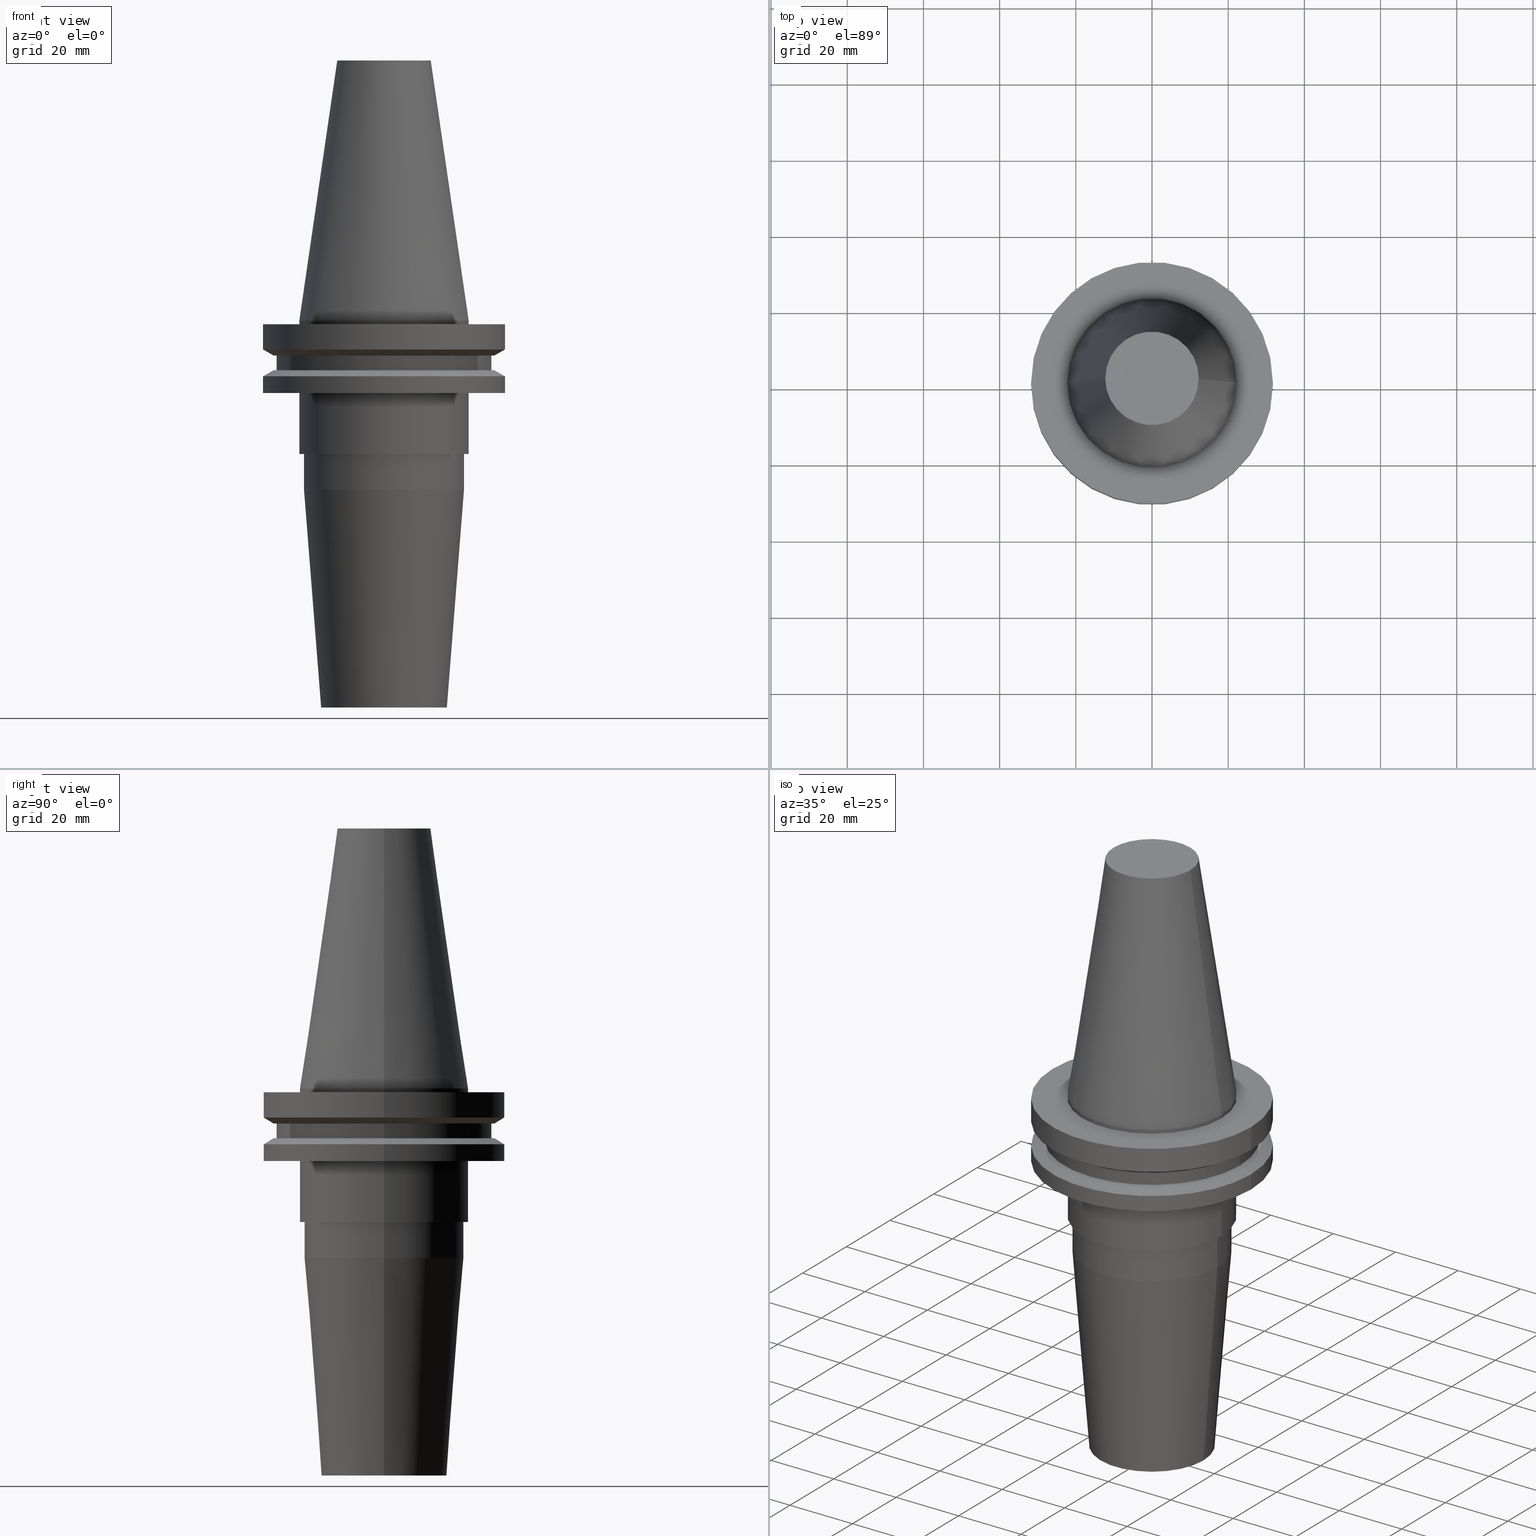
[diagram: canonical four-view strip — front | top / right | iso, engineering-drawing reading convention]
A machine part, canonical four-view strip (front | top / right | iso — engineering-drawing reading convention). The complete STEP part file that produces these views, byte-faithful:
ISO-10303-21;
HEADER;
FILE_DESCRIPTION (( 'STEP AP203' ),
    '1' );
FILE_NAME ('BCV40-SF_750-4.STEP',
    '2022-02-23T17:24:05',
    ( '' ),
    ( '' ),
    'SwSTEP 2.0',
    'SolidWorks 2021',
    '' );
FILE_SCHEMA (( 'CONFIG_CONTROL_DESIGN' ));
ENDSEC;

DATA;
#1 = DIRECTION ( 'NONE',  ( 1.000000000000000000, 0.000000000000000000, 0.000000000000000000 ) ) ;
#2 = VERTEX_POINT ( 'NONE', #451 ) ;
#3 = CYLINDRICAL_SURFACE ( 'NONE', #595, 21.00000000000000000 ) ;
#4 = CARTESIAN_POINT ( 'NONE',  ( 0.000000000000000000, 0.000000000000000000, -1.000000000000000888 ) ) ;
#5 = APPROVAL_DATE_TIME ( #793, #571 ) ;
#6 = ORIENTED_EDGE ( 'NONE', *, *, #713, .T. ) ;
#7 = CARTESIAN_POINT ( 'NONE',  ( 0.000000000000000000, 0.000000000000000000, -19.04999999999999716 ) ) ;
#8 = CARTESIAN_POINT ( 'NONE',  ( -9.524999999999993250, 1.166476076187853036E-15, -101.5999999999999943 ) ) ;
#9 = ORIENTED_EDGE ( 'NONE', *, *, #236, .F. ) ;
#10 = DIRECTION ( 'NONE',  ( -0.000000000000000000, -0.000000000000000000, 1.000000000000000000 ) ) ;
#11 = ADVANCED_FACE ( 'NONE', ( #779, #580 ), #382, .F. ) ;
#12 = DIRECTION ( 'NONE',  ( -0.000000000000000000, -0.000000000000000000, 1.000000000000000000 ) ) ;
#13 = AXIS2_PLACEMENT_3D ( 'NONE', #109, #768, #828 ) ;
#14 = ORIENTED_EDGE ( 'NONE', *, *, #446, .F. ) ;
#15 = DIRECTION ( 'NONE',  ( 1.000000000000000000, 0.000000000000000000, 0.000000000000000000 ) ) ;
#16 = ORIENTED_EDGE ( 'NONE', *, *, #849, .F. ) ;
#17 = DIRECTION ( 'NONE',  ( -0.000000000000000000, -0.000000000000000000, 1.000000000000000000 ) ) ;
#18 = VECTOR ( 'NONE', #352, 999.9999999999998863 ) ;
#19 = EDGE_CURVE ( 'NONE', #2, #391, #101, .T. ) ;
#20 = ORIENTED_EDGE ( 'NONE', *, *, #188, .T. ) ;
#21 = CARTESIAN_POINT ( 'NONE',  ( -22.22499999999999787, 2.721777511104992454E-15, -35.04999999999999716 ) ) ;
#22 = VECTOR ( 'NONE', #373, 1000.000000000000000 ) ;
#23 = ORIENTED_EDGE ( 'NONE', *, *, #116, .T. ) ;
#24 = EDGE_CURVE ( 'NONE', #777, #761, #456, .T. ) ;
#25 = EDGE_CURVE ( 'NONE', #605, #142, #358, .T. ) ;
#26 = FACE_OUTER_BOUND ( 'NONE', #725, .T. ) ;
#27 = CYLINDRICAL_SURFACE ( 'NONE', #742, 22.22500000000000142 ) ;
#28 = ORIENTED_EDGE ( 'NONE', *, *, #152, .T. ) ;
#29 = CARTESIAN_POINT ( 'NONE',  ( 16.50000000000000000, 0.000000000000000000, -101.5999999999999943 ) ) ;
#30 = VERTEX_POINT ( 'NONE', #181 ) ;
#31 = CARTESIAN_POINT ( 'NONE',  ( 21.00000000000000000, 0.000000000000000000, -35.04999999999999716 ) ) ;
#32 = ORIENTED_EDGE ( 'NONE', *, *, #667, .T. ) ;
#33 = EDGE_CURVE ( 'NONE', #718, #428, #575, .T. ) ;
#34 = CIRCLE ( 'NONE', #635, 16.50000000000000000 ) ;
#35 = DIRECTION ( 'NONE',  ( 1.000000000000000000, 0.000000000000000000, 0.000000000000000000 ) ) ;
#36 = EDGE_LOOP ( 'NONE', ( #631, #326, #496, #228 ) ) ;
#37 = CARTESIAN_POINT ( 'NONE',  ( 22.22500000000000142, 0.000000000000000000, -1.000000000000000888 ) ) ;
#38 = CARTESIAN_POINT ( 'NONE',  ( 0.000000000000000000, 0.000000000000000000, -1.000000000000000888 ) ) ;
#39 = COORDINATED_UNIVERSAL_TIME_OFFSET ( 6, 0, .BEHIND. ) ;
#40 = ORIENTED_EDGE ( 'NONE', *, *, #539, .T. ) ;
#41 = CIRCLE ( 'NONE', #396, 28.17999999999999972 ) ;
#42 = EDGE_CURVE ( 'NONE', #74, #92, #52, .T. ) ;
#43 = CARTESIAN_POINT ( 'NONE',  ( 22.22500000000000142, 0.000000000000000000, 68.25000000000000000 ) ) ;
#44 = CYLINDRICAL_SURFACE ( 'NONE', #170, 31.75000000000000000 ) ;
#45 = PERSON_AND_ORGANIZATION ( #56, #693 ) ;
#46 = PRODUCT_DEFINITION_SHAPE ( 'NONE', 'NONE',  #815 ) ;
#47 = VERTEX_POINT ( 'NONE', #770 ) ;
#48 = DIRECTION ( 'NONE',  ( 0.000000000000000000, 0.000000000000000000, -1.000000000000000000 ) ) ;
#49 = EDGE_CURVE ( 'NONE', #105, #676, #651, .T. ) ;
#50 = AXIS2_PLACEMENT_3D ( 'NONE', #553, #17, #816 ) ;
#51 = PLANE ( 'NONE',  #298 ) ;
#52 = CIRCLE ( 'NONE', #475, 22.22500000000000142 ) ;
#53 = CC_DESIGN_PERSON_AND_ORGANIZATION_ASSIGNMENT ( #772, #192, ( #208 ) ) ;
#54 = AXIS2_PLACEMENT_3D ( 'NONE', #606, #480, #392 ) ;
#55 = DIRECTION ( 'NONE',  ( -0.000000000000000000, -0.000000000000000000, 1.000000000000000000 ) ) ;
#56 = PERSON ( 'UNSPECIFIED', 'UNSPECIFIED', 'UNSPECIFIED', ('UNSPECIFIED'), ('UNSPECIFIED'), ('UNSPECIFIED') ) ;
#57 = VERTEX_POINT ( 'NONE', #261 ) ;
#58 = CARTESIAN_POINT ( 'NONE',  ( 0.000000000000000000, 0.000000000000000000, -9.205000000000005400 ) ) ;
#59 = DIRECTION ( 'NONE',  ( 0.000000000000000000, 0.000000000000000000, -1.000000000000000000 ) ) ;
#60 = PERSON_AND_ORGANIZATION_ROLE ( 'classification_officer' ) ;
#61 = FACE_OUTER_BOUND ( 'NONE', #263, .T. ) ;
#62 = ORIENTED_EDGE ( 'NONE', *, *, #446, .T. ) ;
#63 = CARTESIAN_POINT ( 'NONE',  ( 0.000000000000000000, 0.000000000000000000, -14.65472339340266572 ) ) ;
#64 = DIRECTION ( 'NONE',  ( 1.000000000000000000, 0.000000000000000000, 0.000000000000000000 ) ) ;
#65 = EDGE_CURVE ( 'NONE', #846, #288, #217, .T. ) ;
#66 = SECURITY_CLASSIFICATION_LEVEL ( 'unclassified' ) ;
#67 = ORIENTED_EDGE ( 'NONE', *, *, #171, .T. ) ;
#68 = ORIENTED_EDGE ( 'NONE', *, *, #672, .F. ) ;
#69 = CARTESIAN_POINT ( 'NONE',  ( 0.000000000000000000, 0.000000000000000000, -9.205000000000005400 ) ) ;
#70 = AXIS2_PLACEMENT_3D ( 'NONE', #783, #591, #463 ) ;
#71 = DIRECTION ( 'NONE',  ( 0.000000000000000000, -0.000000000000000000, 1.000000000000000000 ) ) ;
#72 = AXIS2_PLACEMENT_3D ( 'NONE', #136, #717, #401 ) ;
#73 = CARTESIAN_POINT ( 'NONE',  ( 0.000000000000000000, 0.000000000000000000, -35.04999999999999716 ) ) ;
#74 = VERTEX_POINT ( 'NONE', #586 ) ;
#75 = CARTESIAN_POINT ( 'NONE',  ( -12.27178102086201150, 0.000000000000000000, 68.25000000000000000 ) ) ;
#76 = CARTESIAN_POINT ( 'NONE',  ( 0.000000000000000000, 0.000000000000000000, -44.42207868720773689 ) ) ;
#77 = CC_DESIGN_APPROVAL ( #571, ( #243 ) ) ;
#78 = EDGE_LOOP ( 'NONE', ( #741, #557, #690, #247 ) ) ;
#79 = EDGE_CURVE ( 'NONE', #646, #300, #810, .T. ) ;
#80 = DIRECTION ( 'NONE',  ( -0.07845909572783665853, 9.608468044709093523E-18, 0.9969173337331286300 ) ) ;
#81 = CYLINDRICAL_SURFACE ( 'NONE', #88, 9.524999999999991473 ) ;
#82 = EDGE_LOOP ( 'NONE', ( #360, #570, #108, #310 ) ) ;
#83 = DIRECTION ( 'NONE',  ( 1.000000000000000000, 0.000000000000000000, 0.000000000000000000 ) ) ;
#84 = EDGE_CURVE ( 'NONE', #269, #663, #314, .T. ) ;
#85 = CARTESIAN_POINT ( 'NONE',  ( 0.000000000000000000, 0.000000000000000000, -9.204999999999991189 ) ) ;
#86 = SHAPE_DEFINITION_REPRESENTATION ( #46, #521 ) ;
#87 = AXIS2_PLACEMENT_3D ( 'NONE', #732, #791, #598 ) ;
#88 = AXIS2_PLACEMENT_3D ( 'NONE', #671, #535, #531 ) ;
#89 = ORIENTED_EDGE ( 'NONE', *, *, #361, .F. ) ;
#90 = FACE_OUTER_BOUND ( 'NONE', #167, .T. ) ;
#91 = ADVANCED_FACE ( 'NONE', ( #649 ), #823, .T. ) ;
#92 = VERTEX_POINT ( 'NONE', #37 ) ;
#93 = CARTESIAN_POINT ( 'NONE',  ( 0.000000000000000000, 0.000000000000000000, -101.5999999999999943 ) ) ;
#94 = ORIENTED_EDGE ( 'NONE', *, *, #305, .F. ) ;
#95 = AXIS2_PLACEMENT_3D ( 'NONE', #334, #800, #788 ) ;
#96 = ADVANCED_FACE ( 'NONE', ( #573 ), #44, .T. ) ;
#97 = ORIENTED_EDGE ( 'NONE', *, *, #752, .F. ) ;
#98 = PRODUCT ( 'BCV40-SF_750-4', 'BCV40-SF_750-4', '', ( #129 ) ) ;
#99 = DIRECTION ( 'NONE',  ( 1.000000000000000000, 0.000000000000000000, 0.000000000000000000 ) ) ;
#100 = AXIS2_PLACEMENT_3D ( 'NONE', #760, #510, #444 ) ;
#101 = CIRCLE ( 'NONE', #202, 16.50000000000000000 ) ;
#102 = ORIENTED_EDGE ( 'NONE', *, *, #837, .F. ) ;
#103 = DIRECTION ( 'NONE',  ( -0.000000000000000000, -0.000000000000000000, 1.000000000000000000 ) ) ;
#104 = CARTESIAN_POINT ( 'NONE',  ( 0.000000000000000000, 0.000000000000000000, 68.25000000000000000 ) ) ;
#105 = VERTEX_POINT ( 'NONE', #246 ) ;
#106 = EDGE_CURVE ( 'NONE', #676, #105, #417, .T. ) ;
#107 = LINE ( 'NONE', #364, #740 ) ;
#108 = ORIENTED_EDGE ( 'NONE', *, *, #305, .T. ) ;
#109 = CARTESIAN_POINT ( 'NONE',  ( 0.000000000000000000, 0.000000000000000000, -13.05499999999999794 ) ) ;
#110 = CARTESIAN_POINT ( 'NONE',  ( 0.000000000000000000, 0.000000000000000000, -101.5999999999999943 ) ) ;
#111 = VECTOR ( 'NONE', #193, 1000.000000000000000 ) ;
#112 = AXIS2_PLACEMENT_3D ( 'NONE', #38, #328, #311 ) ;
#113 = DIRECTION ( 'NONE',  ( 1.000000000000000000, 0.000000000000000000, 0.000000000000000000 ) ) ;
#114 = ORIENTED_EDGE ( 'NONE', *, *, #672, .T. ) ;
#115 = DIRECTION ( 'NONE',  ( -0.000000000000000000, -0.000000000000000000, 1.000000000000000000 ) ) ;
#116 = EDGE_CURVE ( 'NONE', #605, #57, #762, .T. ) ;
#117 = COORDINATED_UNIVERSAL_TIME_OFFSET ( 6, 0, .BEHIND. ) ;
#118 = DIRECTION ( 'NONE',  ( -0.000000000000000000, -0.000000000000000000, 1.000000000000000000 ) ) ;
#119 = PERSON_AND_ORGANIZATION_ROLE ( 'creator' ) ;
#120 = EDGE_CURVE ( 'NONE', #300, #646, #431, .T. ) ;
#121 = EDGE_LOOP ( 'NONE', ( #483, #821 ) ) ;
#122 = DIRECTION ( 'NONE',  ( 1.000000000000000000, 0.000000000000000000, 0.000000000000000000 ) ) ;
#123 = CARTESIAN_POINT ( 'NONE',  ( 0.000000000000000000, 0.000000000000000000, -101.5999999999999943 ) ) ;
#124 = PERSON_AND_ORGANIZATION_ROLE ( 'creator' ) ;
#125 = CARTESIAN_POINT ( 'NONE',  ( 0.000000000000000000, 0.000000000000000000, -19.04999999999999716 ) ) ;
#126 = CIRCLE ( 'NONE', #13, 28.17999999999999972 ) ;
#127 = DIRECTION ( 'NONE',  ( 0.000000000000000000, 0.000000000000000000, -1.000000000000000000 ) ) ;
#128 = CARTESIAN_POINT ( 'NONE',  ( 0.000000000000000000, 0.000000000000000000, -1.000000000000000888 ) ) ;
#129 = MECHANICAL_CONTEXT ( 'NONE', #555, 'mechanical' ) ;
#130 = CARTESIAN_POINT ( 'NONE',  ( 31.75000000000000000, 0.000000000000000000, -14.65472339340266572 ) ) ;
#131 = EDGE_LOOP ( 'NONE', ( #802, #67, #137, #234 ) ) ;
#132 = DIRECTION ( 'NONE',  ( -0.000000000000000000, -0.000000000000000000, 1.000000000000000000 ) ) ;
#133 = ADVANCED_FACE ( 'NONE', ( #394 ), #81, .F. ) ;
#134 = PLANE ( 'NONE',  #460 ) ;
#135 = PERSON_AND_ORGANIZATION ( #56, #693 ) ;
#136 = CARTESIAN_POINT ( 'NONE',  ( 0.000000000000000000, 0.000000000000000000, -35.04999999999999716 ) ) ;
#137 = ORIENTED_EDGE ( 'NONE', *, *, #180, .T. ) ;
#138 = AXIS2_PLACEMENT_3D ( 'NONE', #173, #498, #739 ) ;
#139 = CARTESIAN_POINT ( 'NONE',  ( -31.75000000000000000, 3.888253587292846476E-15, -14.65472339340266572 ) ) ;
#140 = DIRECTION ( 'NONE',  ( 1.000000000000000000, 0.000000000000000000, 0.000000000000000000 ) ) ;
#141 = DIRECTION ( 'NONE',  ( -0.000000000000000000, -0.000000000000000000, 1.000000000000000000 ) ) ;
#142 = VERTEX_POINT ( 'NONE', #8 ) ;
#143 = DIRECTION ( 'NONE',  ( -0.000000000000000000, -0.000000000000000000, 1.000000000000000000 ) ) ;
#144 = VECTOR ( 'NONE', #688, 1000.000000000000000 ) ;
#145 = DIRECTION ( 'NONE',  ( 1.000000000000000000, 0.000000000000000000, 0.000000000000000000 ) ) ;
#146 = ADVANCED_FACE ( 'NONE', ( #665, #613 ), #134, .F. ) ;
#147 = ORIENTED_EDGE ( 'NONE', *, *, #236, .T. ) ;
#148 = DIRECTION ( 'NONE',  ( -0.000000000000000000, -0.000000000000000000, 1.000000000000000000 ) ) ;
#149 = CARTESIAN_POINT ( 'NONE',  ( -21.00000000000000000, 2.571758278209441661E-15, 0.000000000000000000 ) ) ;
#150 = ADVANCED_FACE ( 'NONE', ( #546 ), #399, .T. ) ;
#151 = ORIENTED_EDGE ( 'NONE', *, *, #49, .F. ) ;
#152 = EDGE_CURVE ( 'NONE', #410, #718, #281, .T. ) ;
#153 = CARTESIAN_POINT ( 'NONE',  ( -31.75000000000000000, 3.888253587292846476E-15, 68.25000000000000000 ) ) ;
#154 = DIRECTION ( 'NONE',  ( 1.000000000000000000, 0.000000000000000000, 0.000000000000000000 ) ) ;
#155 = CARTESIAN_POINT ( 'NONE',  ( 28.97919780457007732, 0.000000000000000000, -9.205000000000005400 ) ) ;
#156 = EDGE_LOOP ( 'NONE', ( #763, #62, #251, #653 ) ) ;
#157 = ADVANCED_FACE ( 'NONE', ( #724, #224 ), #406, .F. ) ;
#158 = CARTESIAN_POINT ( 'NONE',  ( 0.000000000000000000, 0.000000000000000000, -14.65472339340266572 ) ) ;
#159 = EDGE_LOOP ( 'NONE', ( #537, #162 ) ) ;
#160 = CIRCLE ( 'NONE', #487, 31.75000000000000000 ) ;
#161 = AXIS2_PLACEMENT_3D ( 'NONE', #847, #10, #339 ) ;
#162 = ORIENTED_EDGE ( 'NONE', *, *, #106, .T. ) ;
#163 = DIRECTION ( 'NONE',  ( 0.1443082272672999711, 1.767266086135276757E-17, -0.9895327864921755756 ) ) ;
#164 = ORIENTED_EDGE ( 'NONE', *, *, #301, .F. ) ;
#165 = LINE ( 'NONE', #294, #807 ) ;
#166 = CIRCLE ( 'NONE', #138, 9.524999999999987921 ) ;
#167 = EDGE_LOOP ( 'NONE', ( #264, #550, #734, #379 ) ) ;
#168 = DIRECTION ( 'NONE',  ( -0.000000000000000000, -0.000000000000000000, 1.000000000000000000 ) ) ;
#169 = VECTOR ( 'NONE', #368, 1000.000000000000000 ) ;
#170 = AXIS2_PLACEMENT_3D ( 'NONE', #203, #464, #636 ) ;
#171 = EDGE_CURVE ( 'NONE', #410, #750, #660, .T. ) ;
#172 = ORIENTED_EDGE ( 'NONE', *, *, #24, .T. ) ;
#173 = CARTESIAN_POINT ( 'NONE',  ( 0.000000000000000000, 0.000000000000000000, -54.59999999999999432 ) ) ;
#174 = APPLICATION_CONTEXT ( 'configuration controlled 3d designs of mechanical parts and assemblies' ) ;
#175 = DESIGN_CONTEXT ( 'detailed design', #174, 'design' ) ;
#176 = DIRECTION ( 'NONE',  ( 0.000000000000000000, -0.000000000000000000, 1.000000000000000000 ) ) ;
#177 = ORIENTED_EDGE ( 'NONE', *, *, #276, .T. ) ;
#178 = CARTESIAN_POINT ( 'NONE',  ( 0.000000000000000000, 9.524999999999987921, -54.59999999999999432 ) ) ;
#179 = VERTEX_POINT ( 'NONE', #340 ) ;
#180 = EDGE_CURVE ( 'NONE', #750, #428, #413, .T. ) ;
#181 = CARTESIAN_POINT ( 'NONE',  ( 12.27178102086201150, 2.112318622904291439E-15, 68.25000000000000000 ) ) ;
#182 = ORIENTED_EDGE ( 'NONE', *, *, #291, .T. ) ;
#183 = VECTOR ( 'NONE', #163, 999.9999999999998863 ) ;
#184 = CIRCLE ( 'NONE', #72, 22.22499999999999787 ) ;
#185 = FACE_OUTER_BOUND ( 'NONE', #332, .T. ) ;
#186 = CC_DESIGN_PERSON_AND_ORGANIZATION_ASSIGNMENT ( #389, #60, ( #243 ) ) ;
#187 = DIRECTION ( 'NONE',  ( 1.000000000000000000, 0.000000000000000000, 0.000000000000000000 ) ) ;
#188 = EDGE_CURVE ( 'NONE', #30, #628, #425, .T. ) ;
#189 = LOCAL_TIME ( 11, 24, 5.000000000000000000, #641 ) ;
#190 = LINE ( 'NONE', #437, #169 ) ;
#191 = DIRECTION ( 'NONE',  ( 1.000000000000000000, 0.000000000000000000, 0.000000000000000000 ) ) ;
#192 = PERSON_AND_ORGANIZATION_ROLE ( 'design_supplier' ) ;
#193 = DIRECTION ( 'NONE',  ( -0.000000000000000000, -0.000000000000000000, 1.000000000000000000 ) ) ;
#194 = CARTESIAN_POINT ( 'NONE',  ( 9.524999999999993250, 0.000000000000000000, -101.5999999999999943 ) ) ;
#195 = DIRECTION ( 'NONE',  ( 0.000000000000000000, 0.000000000000000000, -1.000000000000000000 ) ) ;
#196 =( LENGTH_UNIT ( ) NAMED_UNIT ( * ) SI_UNIT ( .MILLI., .METRE. ) );
#197 = EDGE_LOOP ( 'NONE', ( #420, #731, #366, #461 ) ) ;
#198 = ADVANCED_FACE ( 'NONE', ( #661 ), #346, .T. ) ;
#199 = ORIENTED_EDGE ( 'NONE', *, *, #754, .T. ) ;
#200 = CIRCLE ( 'NONE', #70, 31.74999999999999289 ) ;
#201 = DIRECTION ( 'NONE',  ( 0.000000000000000000, 0.000000000000000000, -1.000000000000000000 ) ) ;
#202 = AXIS2_PLACEMENT_3D ( 'NONE', #110, #515, #832 ) ;
#203 = CARTESIAN_POINT ( 'NONE',  ( 0.000000000000000000, 0.000000000000000000, 68.25000000000000000 ) ) ;
#204 = CALENDAR_DATE ( 2022, 23, 2 ) ;
#205 = DIRECTION ( 'NONE',  ( 1.000000000000000000, 0.000000000000000000, 0.000000000000000000 ) ) ;
#206 = ORIENTED_EDGE ( 'NONE', *, *, #695, .T. ) ;
#207 = FACE_OUTER_BOUND ( 'NONE', #353, .T. ) ;
#208 = PRODUCT_DEFINITION_FORMATION_WITH_SPECIFIED_SOURCE ( 'ANY', '', #98, .NOT_KNOWN. ) ;
#209 = DIRECTION ( 'NONE',  ( 0.000000000000000000, -0.000000000000000000, 1.000000000000000000 ) ) ;
#210 = CARTESIAN_POINT ( 'NONE',  ( 31.74999999999999289, 0.000000000000000000, -19.04999999999999716 ) ) ;
#211 = AXIS2_PLACEMENT_3D ( 'NONE', #472, #727, #145 ) ;
#212 = CARTESIAN_POINT ( 'NONE',  ( 21.00000000000000000, 0.000000000000000000, -44.42207868720773689 ) ) ;
#213 = DIRECTION ( 'NONE',  ( 1.000000000000000000, 0.000000000000000000, 0.000000000000000000 ) ) ;
#214 = EDGE_LOOP ( 'NONE', ( #279, #9 ) ) ;
#215 = DIRECTION ( 'NONE',  ( 1.000000000000000000, 0.000000000000000000, 0.000000000000000000 ) ) ;
#216 = AXIS2_PLACEMENT_3D ( 'NONE', #362, #430, #233 ) ;
#217 = CIRCLE ( 'NONE', #112, 31.75000000000000000 ) ;
#218 = CARTESIAN_POINT ( 'NONE',  ( 0.000000000000000000, 16.50000000000000000, -101.5999999999999943 ) ) ;
#219 = CC_DESIGN_PERSON_AND_ORGANIZATION_ASSIGNMENT ( #581, #119, ( #815 ) ) ;
#220 = ORIENTED_EDGE ( 'NONE', *, *, #42, .F. ) ;
#221 = CARTESIAN_POINT ( 'NONE',  ( 0.000000000000000000, 0.000000000000000000, -101.5999999999999943 ) ) ;
#222 = CARTESIAN_POINT ( 'NONE',  ( 0.000000000000000000, 0.000000000000000000, 68.25000000000000000 ) ) ;
#223 = ORIENTED_EDGE ( 'NONE', *, *, #84, .T. ) ;
#224 = FACE_BOUND ( 'NONE', #669, .T. ) ;
#225 = ORIENTED_EDGE ( 'NONE', *, *, #682, .F. ) ;
#226 = EDGE_CURVE ( 'NONE', #92, #74, #330, .T. ) ;
#227 = CYLINDRICAL_SURFACE ( 'NONE', #50, 9.524999999999991473 ) ;
#228 = ORIENTED_EDGE ( 'NONE', *, *, #291, .F. ) ;
#229 = AXIS2_PLACEMENT_3D ( 'NONE', #662, #657, #259 ) ;
#230 = AXIS2_PLACEMENT_3D ( 'NONE', #508, #319, #766 ) ;
#231 = CARTESIAN_POINT ( 'NONE',  ( 31.75000000000000000, 0.000000000000000000, -7.605276606597335842 ) ) ;
#232 = VERTEX_POINT ( 'NONE', #278 ) ;
#233 = DIRECTION ( 'NONE',  ( 1.000000000000000000, 0.000000000000000000, 0.000000000000000000 ) ) ;
#234 = ORIENTED_EDGE ( 'NONE', *, *, #33, .F. ) ;
#235 = CARTESIAN_POINT ( 'NONE',  ( 0.000000000000000000, 0.000000000000000000, -7.605276606597335842 ) ) ;
#236 = EDGE_CURVE ( 'NONE', #407, #47, #469, .T. ) ;
#237 = VERTEX_POINT ( 'NONE', #678 ) ;
#238 = CARTESIAN_POINT ( 'NONE',  ( 0.000000000000000000, 0.000000000000000000, -7.605276606597335842 ) ) ;
#239 = DIRECTION ( 'NONE',  ( 1.000000000000000000, 0.000000000000000000, 0.000000000000000000 ) ) ;
#240 = AXIS2_PLACEMENT_3D ( 'NONE', #494, #421, #99 ) ;
#241 = FACE_OUTER_BOUND ( 'NONE', #590, .T. ) ;
#242 = CARTESIAN_POINT ( 'NONE',  ( -31.75000000000000000, 3.888253587292846476E-15, -1.000000000000000888 ) ) ;
#243 = SECURITY_CLASSIFICATION ( '', '', #66 ) ;
#244 = ADVANCED_FACE ( 'NONE', ( #482 ), #365, .T. ) ;
#245 = LINE ( 'NONE', #43, #22 ) ;
#246 = CARTESIAN_POINT ( 'NONE',  ( -28.97919780457008088, 0.000000000000000000, -13.05499999999999794 ) ) ;
#247 = ORIENTED_EDGE ( 'NONE', *, *, #171, .F. ) ;
#248 = CC_DESIGN_DATE_AND_TIME_ASSIGNMENT ( #320, #576, ( #815 ) ) ;
#249 = PLANE ( 'NONE',  #100 ) ;
#250 = DIRECTION ( 'NONE',  ( 1.000000000000000000, 0.000000000000000000, 0.000000000000000000 ) ) ;
#251 = ORIENTED_EDGE ( 'NONE', *, *, #262, .F. ) ;
#252 = VECTOR ( 'NONE', #80, 1000.000000000000000 ) ;
#253 = DIRECTION ( 'NONE',  ( 1.000000000000000000, 0.000000000000000000, 0.000000000000000000 ) ) ;
#254 = VECTOR ( 'NONE', #115, 1000.000000000000000 ) ;
#255 = AXIS2_PLACEMENT_3D ( 'NONE', #589, #48, #331 ) ;
#256 = DIRECTION ( 'NONE',  ( -0.000000000000000000, -0.000000000000000000, 1.000000000000000000 ) ) ;
#257 = CARTESIAN_POINT ( 'NONE',  ( 0.000000000000000000, 0.000000000000000000, 0.000000000000000000 ) ) ;
#258 = CALENDAR_DATE ( 2022, 23, 2 ) ;
#259 = DIRECTION ( 'NONE',  ( -1.000000000000000000, 0.000000000000000000, -0.000000000000000000 ) ) ;
#260 = CARTESIAN_POINT ( 'NONE',  ( 0.000000000000000000, 0.000000000000000000, -19.04999999999999716 ) ) ;
#261 = CARTESIAN_POINT ( 'NONE',  ( 9.524999999999987921, 0.000000000000000000, -54.59999999999999432 ) ) ;
#262 = EDGE_CURVE ( 'NONE', #237, #179, #41, .T. ) ;
#263 = EDGE_LOOP ( 'NONE', ( #6, #206, #813, #737 ) ) ;
#264 = ORIENTED_EDGE ( 'NONE', *, *, #400, .F. ) ;
#265 = CYLINDRICAL_SURFACE ( 'NONE', #729, 31.75000000000000000 ) ;
#266 = DIRECTION ( 'NONE',  ( -1.000000000000000000, 0.000000000000000000, 0.000000000000000000 ) ) ;
#267 =( NAMED_UNIT ( * ) PLANE_ANGLE_UNIT ( ) SI_UNIT ( $, .RADIAN. ) );
#268 = CARTESIAN_POINT ( 'NONE',  ( 0.000000000000000000, 0.000000000000000000, 68.25000000000000000 ) ) ;
#269 = VERTEX_POINT ( 'NONE', #272 ) ;
#270 = AXIS2_PLACEMENT_3D ( 'NONE', #58, #851, #280 ) ;
#271 = CARTESIAN_POINT ( 'NONE',  ( -16.50000000000000000, 2.020667218593133100E-15, -101.5999999999999943 ) ) ;
#272 = CARTESIAN_POINT ( 'NONE',  ( -28.97919780457007732, 3.718590885307660666E-15, -9.205000000000005400 ) ) ;
#273 = PERSON_AND_ORGANIZATION_ROLE ( 'design_owner' ) ;
#274 = CYLINDRICAL_SURFACE ( 'NONE', #668, 22.22500000000000142 ) ;
#275 = EDGE_LOOP ( 'NONE', ( #32, #20 ) ) ;
#276 = EDGE_CURVE ( 'NONE', #663, #846, #592, .T. ) ;
#277 = CARTESIAN_POINT ( 'NONE',  ( 0.000000000000000000, 0.000000000000000000, 0.000000000000000000 ) ) ;
#278 = CARTESIAN_POINT ( 'NONE',  ( 22.22500000000000142, 0.000000000000000000, -19.04999999999999716 ) ) ;
#279 = ORIENTED_EDGE ( 'NONE', *, *, #495, .F. ) ;
#280 = DIRECTION ( 'NONE',  ( 1.000000000000000000, 0.000000000000000000, 0.000000000000000000 ) ) ;
#281 = LINE ( 'NONE', #149, #749 ) ;
#282 = ADVANCED_FACE ( 'NONE', ( #549 ), #536, .T. ) ;
#283 = EDGE_CURVE ( 'NONE', #47, #237, #619, .T. ) ;
#284 = ORIENTED_EDGE ( 'NONE', *, *, #393, .T. ) ;
#285 = DIRECTION ( 'NONE',  ( -1.000000000000000000, 0.000000000000000000, 0.000000000000000000 ) ) ;
#286 = CIRCLE ( 'NONE', #357, 31.75000000000000000 ) ;
#287 = CARTESIAN_POINT ( 'NONE',  ( 0.000000000000000000, 0.000000000000000000, 0.000000000000000000 ) ) ;
#288 = VERTEX_POINT ( 'NONE', #426 ) ;
#289 = CC_DESIGN_SECURITY_CLASSIFICATION ( #243, ( #208 ) ) ;
#290 = CARTESIAN_POINT ( 'NONE',  ( -31.75000000000000000, 3.888253587292846476E-15, 68.25000000000000000 ) ) ;
#291 = EDGE_CURVE ( 'NONE', #628, #300, #484, .T. ) ;
#292 = VERTEX_POINT ( 'NONE', #21 ) ;
#293 = AXIS2_PLACEMENT_3D ( 'NONE', #76, #12, #154 ) ;
#294 = CARTESIAN_POINT ( 'NONE',  ( 31.75000000000000000, 3.888253587292846476E-15, -14.65472339340266572 ) ) ;
#295 = DIRECTION ( 'NONE',  ( -0.000000000000000000, -0.000000000000000000, 1.000000000000000000 ) ) ;
#296 = VERTEX_POINT ( 'NONE', #685 ) ;
#297 = CARTESIAN_POINT ( 'NONE',  ( 0.000000000000000000, 0.000000000000000000, -35.04999999999999716 ) ) ;
#298 = AXIS2_PLACEMENT_3D ( 'NONE', #178, #176, #714 ) ;
#299 = CONICAL_SURFACE ( 'NONE', #489, 16.50000000000000000, 0.07853981633973651511 ) ;
#300 = VERTEX_POINT ( 'NONE', #500 ) ;
#301 = EDGE_CURVE ( 'NONE', #367, #57, #166, .T. ) ;
#302 = DIRECTION ( 'NONE',  ( -0.000000000000000000, -0.000000000000000000, 1.000000000000000000 ) ) ;
#303 = ORIENTED_EDGE ( 'NONE', *, *, #65, .F. ) ;
#304 = DIRECTION ( 'NONE',  ( 1.000000000000000000, 0.000000000000000000, 0.000000000000000000 ) ) ;
#305 = EDGE_CURVE ( 'NONE', #761, #620, #438, .T. ) ;
#306 = DIRECTION ( 'NONE',  ( 1.000000000000000000, 0.000000000000000000, 0.000000000000000000 ) ) ;
#307 = EDGE_CURVE ( 'NONE', #292, #509, #686, .T. ) ;
#308 = AXIS2_PLACEMENT_3D ( 'NONE', #569, #59, #711 ) ;
#309 = FACE_OUTER_BOUND ( 'NONE', #492, .T. ) ;
#310 = ORIENTED_EDGE ( 'NONE', *, *, #817, .F. ) ;
#311 = DIRECTION ( 'NONE',  ( 1.000000000000000000, 0.000000000000000000, 0.000000000000000000 ) ) ;
#312 = ORIENTED_EDGE ( 'NONE', *, *, #771, .F. ) ;
#313 = DIRECTION ( 'NONE',  ( -0.000000000000000000, -0.000000000000000000, 1.000000000000000000 ) ) ;
#314 = LINE ( 'NONE', #848, #372 ) ;
#315 = AXIS2_PLACEMENT_3D ( 'NONE', #222, #803, #468 ) ;
#316 = APPROVAL_STATUS ( 'not_yet_approved' ) ;
#317 = ORIENTED_EDGE ( 'NONE', *, *, #759, .F. ) ;
#318 = CARTESIAN_POINT ( 'NONE',  ( 0.000000000000000000, 0.000000000000000000, -14.65472339340266572 ) ) ;
#319 = DIRECTION ( 'NONE',  ( -0.000000000000000000, -0.000000000000000000, 1.000000000000000000 ) ) ;
#320 = DATE_AND_TIME ( #204, #189 ) ;
#321 = ORIENTED_EDGE ( 'NONE', *, *, #817, .T. ) ;
#322 = CIRCLE ( 'NONE', #240, 9.524999999999993250 ) ;
#323 =( GEOMETRIC_REPRESENTATION_CONTEXT ( 3 ) GLOBAL_UNCERTAINTY_ASSIGNED_CONTEXT ( ( #692 ) ) GLOBAL_UNIT_ASSIGNED_CONTEXT ( ( #196, #267, #785 ) ) REPRESENTATION_CONTEXT ( 'NONE', 'WORKASPACE' ) );
#324 = CARTESIAN_POINT ( 'NONE',  ( -22.22500000000000142, 2.721777511104992849E-15, -19.04999999999999716 ) ) ;
#325 = VERTEX_POINT ( 'NONE', #694 ) ;
#326 = ORIENTED_EDGE ( 'NONE', *, *, #369, .T. ) ;
#327 = FACE_OUTER_BOUND ( 'NONE', #156, .T. ) ;
#328 = DIRECTION ( 'NONE',  ( -0.000000000000000000, -0.000000000000000000, 1.000000000000000000 ) ) ;
#329 = DATE_AND_TIME ( #452, #746 ) ;
#330 = CIRCLE ( 'NONE', #804, 22.22500000000000142 ) ;
#331 = DIRECTION ( 'NONE',  ( -1.000000000000000000, 0.000000000000000000, 0.000000000000000000 ) ) ;
#332 = EDGE_LOOP ( 'NONE', ( #16, #164 ) ) ;
#333 = FACE_OUTER_BOUND ( 'NONE', #351, .T. ) ;
#334 = CARTESIAN_POINT ( 'NONE',  ( 0.000000000000000000, 0.000000000000000000, -13.05499999999999794 ) ) ;
#335 = FACE_OUTER_BOUND ( 'NONE', #625, .T. ) ;
#336 = EDGE_LOOP ( 'NONE', ( #479, #638, #829, #402 ) ) ;
#337 = AXIS2_PLACEMENT_3D ( 'NONE', #633, #313, #709 ) ;
#338 = AXIS2_PLACEMENT_3D ( 'NONE', #505, #758, #833 ) ;
#339 = DIRECTION ( 'NONE',  ( 1.000000000000000000, 0.000000000000000000, 0.000000000000000000 ) ) ;
#340 = CARTESIAN_POINT ( 'NONE',  ( -28.17999999999999972, 3.451054679997241634E-15, -9.204999999999991189 ) ) ;
#341 = ADVANCED_FACE ( 'NONE', ( #90 ), #227, .F. ) ;
#342 = EDGE_CURVE ( 'NONE', #663, #843, #160, .T. ) ;
#343 = CARTESIAN_POINT ( 'NONE',  ( 0.000000000000000000, 0.000000000000000000, 68.25000000000000000 ) ) ;
#344 = ORIENTED_EDGE ( 'NONE', *, *, #601, .T. ) ;
#345 = DIRECTION ( 'NONE',  ( 1.000000000000000000, 0.000000000000000000, 0.000000000000000000 ) ) ;
#346 = CYLINDRICAL_SURFACE ( 'NONE', #585, 21.00000000000000000 ) ;
#347 = ORIENTED_EDGE ( 'NONE', *, *, #752, .T. ) ;
#348 = FACE_BOUND ( 'NONE', #634, .T. ) ;
#349 = AXIS2_PLACEMENT_3D ( 'NONE', #318, #127, #836 ) ;
#350 = DIRECTION ( 'NONE',  ( -0.000000000000000000, -0.000000000000000000, 1.000000000000000000 ) ) ;
#351 = EDGE_LOOP ( 'NONE', ( #89, #151, #321, #507 ) ) ;
#352 = DIRECTION ( 'NONE',  ( -0.1443082272672999711, 0.000000000000000000, -0.9895327864921755756 ) ) ;
#353 = EDGE_LOOP ( 'NONE', ( #529, #177, #470, #600 ) ) ;
#354 = CARTESIAN_POINT ( 'NONE',  ( 0.000000000000000000, 0.000000000000000000, -9.204999999999991189 ) ) ;
#355 = EDGE_LOOP ( 'NONE', ( #435, #28, #317, #680 ) ) ;
#356 = CARTESIAN_POINT ( 'NONE',  ( -28.17999999999999972, 3.451054679997241634E-15, -13.05499999999999794 ) ) ;
#357 = AXIS2_PLACEMENT_3D ( 'NONE', #701, #256, #764 ) ;
#358 = CIRCLE ( 'NONE', #780, 9.524999999999993250 ) ;
#359 = VECTOR ( 'NONE', #647, 1000.000000000000000 ) ;
#360 = ORIENTED_EDGE ( 'NONE', *, *, #106, .F. ) ;
#361 = EDGE_CURVE ( 'NONE', #676, #761, #165, .T. ) ;
#362 = CARTESIAN_POINT ( 'NONE',  ( 0.000000000000000000, 0.000000000000000000, 68.25000000000000000 ) ) ;
#363 = ORIENTED_EDGE ( 'NONE', *, *, #682, .T. ) ;
#364 = CARTESIAN_POINT ( 'NONE',  ( 16.50000000000000000, 0.000000000000000000, -101.5999999999999943 ) ) ;
#365 = CONICAL_SURFACE ( 'NONE', #211, 28.97919780457007732, 1.047197551196598297 ) ;
#366 = ORIENTED_EDGE ( 'NONE', *, *, #689, .T. ) ;
#367 = VERTEX_POINT ( 'NONE', #751 ) ;
#368 = DIRECTION ( 'NONE',  ( -0.000000000000000000, -0.000000000000000000, 1.000000000000000000 ) ) ;
#369 = EDGE_CURVE ( 'NONE', #30, #646, #433, .T. ) ;
#370 = CIRCLE ( 'NONE', #852, 31.74999999999999289 ) ;
#371 = AXIS2_PLACEMENT_3D ( 'NONE', #7, #132, #83 ) ;
#372 = VECTOR ( 'NONE', #775, 1000.000000000000000 ) ;
#373 = DIRECTION ( 'NONE',  ( -0.000000000000000000, -0.000000000000000000, 1.000000000000000000 ) ) ;
#374 = CARTESIAN_POINT ( 'NONE',  ( 0.000000000000000000, 0.000000000000000000, -35.04999999999999716 ) ) ;
#375 = EDGE_LOOP ( 'NONE', ( #68, #486 ) ) ;
#376 = FACE_BOUND ( 'NONE', #121, .T. ) ;
#377 = ORIENTED_EDGE ( 'NONE', *, *, #393, .F. ) ;
#378 = COORDINATED_UNIVERSAL_TIME_OFFSET ( 6, 0, .BEHIND. ) ;
#379 = ORIENTED_EDGE ( 'NONE', *, *, #116, .F. ) ;
#380 = ADVANCED_FACE ( 'NONE', ( #26 ), #747, .T. ) ;
#381 = CARTESIAN_POINT ( 'NONE',  ( -22.22500000000000142, 2.721777511104992849E-15, 68.25000000000000000 ) ) ;
#382 = PLANE ( 'NONE',  #308 ) ;
#383 = DIRECTION ( 'NONE',  ( 0.000000000000000000, 0.000000000000000000, 1.000000000000000000 ) ) ;
#384 = AXIS2_PLACEMENT_3D ( 'NONE', #354, #696, #820 ) ;
#385 = EDGE_LOOP ( 'NONE', ( #439, #545, #652, #745 ) ) ;
#386 = EDGE_CURVE ( 'NONE', #74, #300, #627, .T. ) ;
#387 = DIRECTION ( 'NONE',  ( 1.000000000000000000, 0.000000000000000000, 0.000000000000000000 ) ) ;
#388 = DIRECTION ( 'NONE',  ( -0.000000000000000000, -0.000000000000000000, 1.000000000000000000 ) ) ;
#389 = PERSON_AND_ORGANIZATION ( #56, #693 ) ;
#390 = FACE_OUTER_BOUND ( 'NONE', #275, .T. ) ;
#391 = VERTEX_POINT ( 'NONE', #29 ) ;
#392 = DIRECTION ( 'NONE',  ( 1.000000000000000000, 0.000000000000000000, 0.000000000000000000 ) ) ;
#393 = EDGE_CURVE ( 'NONE', #179, #237, #650, .T. ) ;
#394 = FACE_OUTER_BOUND ( 'NONE', #673, .T. ) ;
#395 = APPROVAL_STATUS ( 'not_yet_approved' ) ;
#396 = AXIS2_PLACEMENT_3D ( 'NONE', #85, #350, #15 ) ;
#397 = PLANE ( 'NONE',  #229 ) ;
#398 = FACE_OUTER_BOUND ( 'NONE', #375, .T. ) ;
#399 = CYLINDRICAL_SURFACE ( 'NONE', #315, 22.22500000000000142 ) ;
#400 = EDGE_CURVE ( 'NONE', #142, #605, #322, .T. ) ;
#401 = DIRECTION ( 'NONE',  ( 1.000000000000000000, 0.000000000000000000, 0.000000000000000000 ) ) ;
#402 = ORIENTED_EDGE ( 'NONE', *, *, #689, .F. ) ;
#403 = AXIS2_PLACEMENT_3D ( 'NONE', #841, #643, #113 ) ;
#404 = VECTOR ( 'NONE', #295, 1000.000000000000000 ) ;
#405 = CARTESIAN_POINT ( 'NONE',  ( -21.00000000000000000, 2.571758278209441661E-15, -35.04999999999999716 ) ) ;
#406 = PLANE ( 'NONE',  #497 ) ;
#407 = VERTEX_POINT ( 'NONE', #356 ) ;
#408 = DIRECTION ( 'NONE',  ( 1.000000000000000000, 0.000000000000000000, 0.000000000000000000 ) ) ;
#409 = DIRECTION ( 'NONE',  ( -0.000000000000000000, -0.000000000000000000, 1.000000000000000000 ) ) ;
#410 = VERTEX_POINT ( 'NONE', #624 ) ;
#411 = EDGE_CURVE ( 'NONE', #843, #663, #715, .T. ) ;
#412 = DIRECTION ( 'NONE',  ( -0.000000000000000000, -0.000000000000000000, 1.000000000000000000 ) ) ;
#413 = LINE ( 'NONE', #478, #818 ) ;
#414 = DIRECTION ( 'NONE',  ( 0.8660254037844389297, 0.000000000000000000, 0.4999999999999995004 ) ) ;
#415 = ORIENTED_EDGE ( 'NONE', *, *, #25, .T. ) ;
#416 = AXIS2_PLACEMENT_3D ( 'NONE', #297, #103, #559 ) ;
#417 = CIRCLE ( 'NONE', #230, 28.97919780457008088 ) ;
#418 = DIRECTION ( 'NONE',  ( -0.000000000000000000, -0.000000000000000000, 1.000000000000000000 ) ) ;
#419 = COORDINATED_UNIVERSAL_TIME_OFFSET ( 6, 0, .BEHIND. ) ;
#420 = ORIENTED_EDGE ( 'NONE', *, *, #386, .F. ) ;
#421 = DIRECTION ( 'NONE',  ( -0.000000000000000000, -0.000000000000000000, 1.000000000000000000 ) ) ;
#422 = ORIENTED_EDGE ( 'NONE', *, *, #276, .F. ) ;
#423 = EDGE_CURVE ( 'NONE', #391, #750, #107, .T. ) ;
#424 = ORIENTED_EDGE ( 'NONE', *, *, #754, .F. ) ;
#425 = CIRCLE ( 'NONE', #830, 12.27178102086201150 ) ;
#426 = CARTESIAN_POINT ( 'NONE',  ( 31.75000000000000000, 0.000000000000000000, -1.000000000000000888 ) ) ;
#427 = PRODUCT_RELATED_PRODUCT_CATEGORY ( 'detail', '', ( #98 ) ) ;
#428 = VERTEX_POINT ( 'NONE', #31 ) ;
#429 = ADVANCED_FACE ( 'NONE', ( #185 ), #51, .F. ) ;
#430 = DIRECTION ( 'NONE',  ( -0.000000000000000000, -0.000000000000000000, 1.000000000000000000 ) ) ;
#431 = CIRCLE ( 'NONE', #755, 22.22500000000000142 ) ;
#432 = ORIENTED_EDGE ( 'NONE', *, *, #400, .T. ) ;
#433 = LINE ( 'NONE', #744, #183 ) ;
#434 = FACE_OUTER_BOUND ( 'NONE', #610, .T. ) ;
#435 = ORIENTED_EDGE ( 'NONE', *, *, #514, .T. ) ;
#436 = EDGE_CURVE ( 'NONE', #288, #846, #286, .T. ) ;
#437 = CARTESIAN_POINT ( 'NONE',  ( -28.17999999999999972, 3.451054679997241634E-15, 68.25000000000000000 ) ) ;
#438 = CIRCLE ( 'NONE', #617, 31.75000000000000000 ) ;
#439 = ORIENTED_EDGE ( 'NONE', *, *, #84, .F. ) ;
#440 = DIRECTION ( 'NONE',  ( 1.000000000000000000, 0.000000000000000000, 0.000000000000000000 ) ) ;
#441 = AXIS2_PLACEMENT_3D ( 'NONE', #69, #677, #664 ) ;
#442 = AXIS2_PLACEMENT_3D ( 'NONE', #73, #141, #459 ) ;
#443 = EDGE_LOOP ( 'NONE', ( #548, #834 ) ) ;
#444 = DIRECTION ( 'NONE',  ( -1.000000000000000000, 0.000000000000000000, -0.000000000000000000 ) ) ;
#445 = DIRECTION ( 'NONE',  ( -0.000000000000000000, -0.000000000000000000, 1.000000000000000000 ) ) ;
#446 = EDGE_CURVE ( 'NONE', #407, #179, #190, .T. ) ;
#447 = DATE_AND_TIME ( #588, #564 ) ;
#448 = CC_DESIGN_APPROVAL ( #454, ( #208 ) ) ;
#449 = FACE_OUTER_BOUND ( 'NONE', #551, .T. ) ;
#450 = FACE_OUTER_BOUND ( 'NONE', #336, .T. ) ;
#451 = CARTESIAN_POINT ( 'NONE',  ( -16.50000000000000000, 2.296212748401287578E-15, -101.5999999999999943 ) ) ;
#452 = CALENDAR_DATE ( 2022, 23, 2 ) ;
#453 = CC_DESIGN_PERSON_AND_ORGANIZATION_ASSIGNMENT ( #516, #124, ( #208 ) ) ;
#454 = APPROVAL ( #395, 'UNSPECIFIED' ) ;
#455 = CARTESIAN_POINT ( 'NONE',  ( 0.000000000000000000, 0.000000000000000000, -44.42207868720773689 ) ) ;
#456 = LINE ( 'NONE', #644, #254 ) ;
#457 = APPROVAL_DATE_TIME ( #776, #454 ) ;
#458 = CIRCLE ( 'NONE', #441, 28.97919780457007732 ) ;
#459 = DIRECTION ( 'NONE',  ( 1.000000000000000000, 0.000000000000000000, 0.000000000000000000 ) ) ;
#460 = AXIS2_PLACEMENT_3D ( 'NONE', #218, #209, #543 ) ;
#461 = ORIENTED_EDGE ( 'NONE', *, *, #120, .F. ) ;
#462 = ADVANCED_FACE ( 'NONE', ( #376, #241 ), #698, .F. ) ;
#463 = DIRECTION ( 'NONE',  ( 1.000000000000000000, 0.000000000000000000, 0.000000000000000000 ) ) ;
#464 = DIRECTION ( 'NONE',  ( -0.000000000000000000, -0.000000000000000000, 1.000000000000000000 ) ) ;
#465 = ORIENTED_EDGE ( 'NONE', *, *, #547, .T. ) ;
#466 = DIRECTION ( 'NONE',  ( 1.000000000000000000, 0.000000000000000000, 0.000000000000000000 ) ) ;
#467 = APPROVAL ( #767, 'UNSPECIFIED' ) ;
#468 = DIRECTION ( 'NONE',  ( 1.000000000000000000, 0.000000000000000000, 0.000000000000000000 ) ) ;
#469 = CIRCLE ( 'NONE', #95, 28.17999999999999972 ) ;
#470 = ORIENTED_EDGE ( 'NONE', *, *, #436, .F. ) ;
#471 = LINE ( 'NONE', #153, #552 ) ;
#472 = CARTESIAN_POINT ( 'NONE',  ( 0.000000000000000000, 0.000000000000000000, -9.205000000000005400 ) ) ;
#473 = CARTESIAN_POINT ( 'NONE',  ( -9.524999999999991473, 1.166476076187852838E-15, 0.000000000000000000 ) ) ;
#474 = CONICAL_SURFACE ( 'NONE', #594, 31.75000000000000000, 1.047197551196597853 ) ;
#475 = AXIS2_PLACEMENT_3D ( 'NONE', #128, #388, #187 ) ;
#476 = CIRCLE ( 'NONE', #809, 22.22500000000000142 ) ;
#477 = CYLINDRICAL_SURFACE ( 'NONE', #700, 31.75000000000000000 ) ;
#478 = CARTESIAN_POINT ( 'NONE',  ( 21.00000000000000000, 0.000000000000000000, 0.000000000000000000 ) ) ;
#479 = ORIENTED_EDGE ( 'NONE', *, *, #226, .T. ) ;
#480 = DIRECTION ( 'NONE',  ( 0.000000000000000000, -0.000000000000000000, 1.000000000000000000 ) ) ;
#481 = APPROVAL_PERSON_ORGANIZATION ( #593, #571, #855 ) ;
#482 = FACE_OUTER_BOUND ( 'NONE', #797, .T. ) ;
#483 = ORIENTED_EDGE ( 'NONE', *, *, #759, .T. ) ;
#484 = LINE ( 'NONE', #683, #18 ) ;
#485 = LINE ( 'NONE', #155, #765 ) ;
#486 = ORIENTED_EDGE ( 'NONE', *, *, #655, .F. ) ;
#487 = AXIS2_PLACEMENT_3D ( 'NONE', #235, #490, #304 ) ;
#488 = ADVANCED_FACE ( 'NONE', ( #327 ), #774, .T. ) ;
#489 = AXIS2_PLACEMENT_3D ( 'NONE', #596, #773, #253 ) ;
#490 = DIRECTION ( 'NONE',  ( -0.000000000000000000, -0.000000000000000000, 1.000000000000000000 ) ) ;
#491 = ORIENTED_EDGE ( 'NONE', *, *, #283, .T. ) ;
#492 = EDGE_LOOP ( 'NONE', ( #422, #630, #499, #303 ) ) ;
#493 = CC_DESIGN_APPROVAL ( #467, ( #815 ) ) ;
#494 = CARTESIAN_POINT ( 'NONE',  ( 0.000000000000000000, 0.000000000000000000, -101.5999999999999943 ) ) ;
#495 = EDGE_CURVE ( 'NONE', #47, #407, #126, .T. ) ;
#496 = ORIENTED_EDGE ( 'NONE', *, *, #79, .T. ) ;
#497 = AXIS2_PLACEMENT_3D ( 'NONE', #540, #71, #784 ) ;
#498 = DIRECTION ( 'NONE',  ( -0.000000000000000000, -0.000000000000000000, 1.000000000000000000 ) ) ;
#499 = ORIENTED_EDGE ( 'NONE', *, *, #826, .T. ) ;
#500 = CARTESIAN_POINT ( 'NONE',  ( -22.22500000000000142, 0.000000000000000000, 0.000000000000000000 ) ) ;
#501 = CONICAL_SURFACE ( 'NONE', #349, 31.75000000000000000, 1.047197551196597853 ) ;
#502 = AXIS2_PLACEMENT_3D ( 'NONE', #523, #656, #706 ) ;
#503 = ADVANCED_FACE ( 'NONE', ( #450 ), #648, .T. ) ;
#504 = DIRECTION ( 'NONE',  ( -0.000000000000000000, -0.000000000000000000, 1.000000000000000000 ) ) ;
#505 = CARTESIAN_POINT ( 'NONE',  ( 0.000000000000000000, 0.000000000000000000, -54.59999999999999432 ) ) ;
#506 = LINE ( 'NONE', #381, #835 ) ;
#507 = ORIENTED_EDGE ( 'NONE', *, *, #642, .T. ) ;
#508 = CARTESIAN_POINT ( 'NONE',  ( 0.000000000000000000, 0.000000000000000000, -13.05499999999999794 ) ) ;
#509 = VERTEX_POINT ( 'NONE', #567 ) ;
#510 = DIRECTION ( 'NONE',  ( 0.000000000000000000, 0.000000000000000000, -1.000000000000000000 ) ) ;
#511 = DIRECTION ( 'NONE',  ( -0.000000000000000000, -0.000000000000000000, 1.000000000000000000 ) ) ;
#512 = APPLICATION_PROTOCOL_DEFINITION ( 'international standard', 'config_control_design', 1994, #174 ) ;
#513 = CARTESIAN_POINT ( 'NONE',  ( 0.000000000000000000, 0.000000000000000000, 68.25000000000000000 ) ) ;
#514 = EDGE_CURVE ( 'NONE', #750, #410, #691, .T. ) ;
#515 = DIRECTION ( 'NONE',  ( -0.000000000000000000, -0.000000000000000000, 1.000000000000000000 ) ) ;
#516 = PERSON_AND_ORGANIZATION ( #56, #693 ) ;
#517 = DIRECTION ( 'NONE',  ( -0.000000000000000000, -0.000000000000000000, 1.000000000000000000 ) ) ;
#518 = CARTESIAN_POINT ( 'NONE',  ( 0.000000000000000000, 0.000000000000000000, 0.000000000000000000 ) ) ;
#519 = DIRECTION ( 'NONE',  ( 1.000000000000000000, 0.000000000000000000, 0.000000000000000000 ) ) ;
#520 = ORIENTED_EDGE ( 'NONE', *, *, #728, .T. ) ;
#521 = ADVANCED_BREP_SHAPE_REPRESENTATION ( 'BCV40-SF_750-4', ( #798, #541 ), #323 ) ;
#522 = FACE_OUTER_BOUND ( 'NONE', #355, .T. ) ;
#523 = CARTESIAN_POINT ( 'NONE',  ( 0.000000000000000000, 0.000000000000000000, -13.05499999999999794 ) ) ;
#524 = APPROVAL_ROLE ( '' ) ;
#525 = CONICAL_SURFACE ( 'NONE', #270, 28.97919780457007732, 1.047197551196598297 ) ;
#526 = LINE ( 'NONE', #532, #359 ) ;
#527 = CLOSED_SHELL ( 'NONE', ( #341, #801, #748, #503, #699, #244, #488, #587, #96, #844, #91, #789, #782, #462, #811, #157, #637, #626, #11, #380, #738, #609, #528, #566, #150, #198, #282, #146, #133, #429 ) ) ;
#528 = ADVANCED_FACE ( 'NONE', ( #309 ), #572, .T. ) ;
#529 = ORIENTED_EDGE ( 'NONE', *, *, #411, .T. ) ;
#530 = DIRECTION ( 'NONE',  ( -0.000000000000000000, -0.000000000000000000, 1.000000000000000000 ) ) ;
#531 = DIRECTION ( 'NONE',  ( 1.000000000000000000, 0.000000000000000000, 0.000000000000000000 ) ) ;
#532 = CARTESIAN_POINT ( 'NONE',  ( -31.75000000000000000, 0.000000000000000000, -14.65472339340266572 ) ) ;
#533 = ORIENTED_EDGE ( 'NONE', *, *, #849, .T. ) ;
#534 = DIRECTION ( 'NONE',  ( -0.000000000000000000, -0.000000000000000000, 1.000000000000000000 ) ) ;
#535 = DIRECTION ( 'NONE',  ( -0.000000000000000000, -0.000000000000000000, 1.000000000000000000 ) ) ;
#536 = CONICAL_SURFACE ( 'NONE', #710, 16.50000000000000000, 0.07853981633973651511 ) ;
#537 = ORIENTED_EDGE ( 'NONE', *, *, #49, .T. ) ;
#538 = PLANE ( 'NONE',  #54 ) ;
#539 = EDGE_CURVE ( 'NONE', #509, #232, #245, .T. ) ;
#540 = CARTESIAN_POINT ( 'NONE',  ( 0.000000000000000000, 31.74999999999999289, -19.04999999999999716 ) ) ;
#541 = AXIS2_PLACEMENT_3D ( 'NONE', #645, #383, #519 ) ;
#542 = LINE ( 'NONE', #659, #681 ) ;
#543 = DIRECTION ( 'NONE',  ( 1.000000000000000000, 0.000000000000000000, 0.000000000000000000 ) ) ;
#544 = CC_DESIGN_PERSON_AND_ORGANIZATION_ASSIGNMENT ( #45, #273, ( #98 ) ) ;
#545 = ORIENTED_EDGE ( 'NONE', *, *, #655, .T. ) ;
#546 = FACE_OUTER_BOUND ( 'NONE', #197, .T. ) ;
#547 = EDGE_CURVE ( 'NONE', #292, #554, #506, .T. ) ;
#548 = ORIENTED_EDGE ( 'NONE', *, *, #436, .T. ) ;
#549 = FACE_OUTER_BOUND ( 'NONE', #78, .T. ) ;
#550 = ORIENTED_EDGE ( 'NONE', *, *, #842, .T. ) ;
#551 = EDGE_LOOP ( 'NONE', ( #790, #658, #40, #736 ) ) ;
#552 = VECTOR ( 'NONE', #412, 1000.000000000000000 ) ;
#553 = CARTESIAN_POINT ( 'NONE',  ( 0.000000000000000000, 0.000000000000000000, 0.000000000000000000 ) ) ;
#554 = VERTEX_POINT ( 'NONE', #324 ) ;
#555 = APPLICATION_CONTEXT ( 'configuration controlled 3d designs of mechanical parts and assemblies' ) ;
#556 = DIRECTION ( 'NONE',  ( 1.000000000000000000, 0.000000000000000000, 0.000000000000000000 ) ) ;
#557 = ORIENTED_EDGE ( 'NONE', *, *, #19, .T. ) ;
#558 = CARTESIAN_POINT ( 'NONE',  ( -22.22500000000000142, 2.721777511104992849E-15, 68.25000000000000000 ) ) ;
#559 = DIRECTION ( 'NONE',  ( 1.000000000000000000, 0.000000000000000000, 0.000000000000000000 ) ) ;
#560 = CIRCLE ( 'NONE', #622, 28.97919780457007732 ) ;
#561 = EDGE_LOOP ( 'NONE', ( #344, #347, #94, #614 ) ) ;
#562 = CARTESIAN_POINT ( 'NONE',  ( 0.000000000000000000, 22.22499999999999787, -35.04999999999999716 ) ) ;
#563 = ORIENTED_EDGE ( 'NONE', *, *, #539, .F. ) ;
#564 = LOCAL_TIME ( 11, 24, 5.000000000000000000, #117 ) ;
#565 = ORIENTED_EDGE ( 'NONE', *, *, #713, .F. ) ;
#566 = ADVANCED_FACE ( 'NONE', ( #579, #584 ), #249, .F. ) ;
#567 = CARTESIAN_POINT ( 'NONE',  ( 22.22499999999999787, 0.000000000000000000, -35.04999999999999716 ) ) ;
#568 = VECTOR ( 'NONE', #806, 1000.000000000000000 ) ;
#569 = CARTESIAN_POINT ( 'NONE',  ( 0.000000000000000000, 28.17999999999999972, -13.05499999999999794 ) ) ;
#570 = ORIENTED_EDGE ( 'NONE', *, *, #361, .T. ) ;
#571 = APPROVAL ( #316, 'UNSPECIFIED' ) ;
#572 = CYLINDRICAL_SURFACE ( 'NONE', #403, 31.75000000000000000 ) ;
#573 = FACE_OUTER_BOUND ( 'NONE', #561, .T. ) ;
#574 = CIRCLE ( 'NONE', #161, 31.75000000000000000 ) ;
#575 = CIRCLE ( 'NONE', #743, 21.00000000000000000 ) ;
#576 = DATE_TIME_ROLE ( 'creation_date' ) ;
#577 = EDGE_LOOP ( 'NONE', ( #97, #363, #172, #697 ) ) ;
#578 = LINE ( 'NONE', #840, #111 ) ;
#579 = FACE_BOUND ( 'NONE', #808, .T. ) ;
#580 = FACE_OUTER_BOUND ( 'NONE', #159, .T. ) ;
#581 = PERSON_AND_ORGANIZATION ( #56, #693 ) ;
#582 = ORIENTED_EDGE ( 'NONE', *, *, #307, .F. ) ;
#583 = ORIENTED_EDGE ( 'NONE', *, *, #771, .T. ) ;
#584 = FACE_OUTER_BOUND ( 'NONE', #443, .T. ) ;
#585 = AXIS2_PLACEMENT_3D ( 'NONE', #287, #853, #64 ) ;
#586 = CARTESIAN_POINT ( 'NONE',  ( -22.22500000000000142, 2.721777511104992849E-15, -1.000000000000000888 ) ) ;
#587 = ADVANCED_FACE ( 'NONE', ( #705 ), #501, .T. ) ;
#588 = CALENDAR_DATE ( 2022, 23, 2 ) ;
#589 = CARTESIAN_POINT ( 'NONE',  ( 0.000000000000000000, 0.000000000000000000, 0.000000000000000000 ) ) ;
#590 = EDGE_LOOP ( 'NONE', ( #312, #582 ) ) ;
#591 = DIRECTION ( 'NONE',  ( -0.000000000000000000, -0.000000000000000000, 1.000000000000000000 ) ) ;
#592 = LINE ( 'NONE', #290, #604 ) ;
#593 = PERSON_AND_ORGANIZATION ( #56, #693 ) ;
#594 = AXIS2_PLACEMENT_3D ( 'NONE', #63, #201, #285 ) ;
#595 = AXIS2_PLACEMENT_3D ( 'NONE', #277, #534, #670 ) ;
#596 = CARTESIAN_POINT ( 'NONE',  ( 0.000000000000000000, 0.000000000000000000, -101.5999999999999943 ) ) ;
#597 = ORIENTED_EDGE ( 'NONE', *, *, #25, .F. ) ;
#598 = DIRECTION ( 'NONE',  ( 1.000000000000000000, 0.000000000000000000, 0.000000000000000000 ) ) ;
#599 = DIRECTION ( 'NONE',  ( -0.000000000000000000, -0.000000000000000000, 1.000000000000000000 ) ) ;
#600 = ORIENTED_EDGE ( 'NONE', *, *, #826, .F. ) ;
#601 = EDGE_CURVE ( 'NONE', #777, #325, #370, .T. ) ;
#602 = FACE_OUTER_BOUND ( 'NONE', #577, .T. ) ;
#603 = DIRECTION ( 'NONE',  ( -0.000000000000000000, -0.000000000000000000, 1.000000000000000000 ) ) ;
#604 = VECTOR ( 'NONE', #418, 1000.000000000000000 ) ;
#605 = VERTEX_POINT ( 'NONE', #194 ) ;
#606 = CARTESIAN_POINT ( 'NONE',  ( 0.000000000000000000, 28.97919780457007732, -9.204999999999996518 ) ) ;
#607 = CC_DESIGN_DATE_AND_TIME_ASSIGNMENT ( #329, #712, ( #243 ) ) ;
#608 = CARTESIAN_POINT ( 'NONE',  ( 0.000000000000000000, 0.000000000000000000, 68.25000000000000000 ) ) ;
#609 = ADVANCED_FACE ( 'NONE', ( #654 ), #525, .T. ) ;
#610 = EDGE_LOOP ( 'NONE', ( #583, #465, #424, #563 ) ) ;
#611 = AXIS2_PLACEMENT_3D ( 'NONE', #562, #639, #757 ) ;
#612 = AXIS2_PLACEMENT_3D ( 'NONE', #518, #195, #266 ) ;
#613 = FACE_BOUND ( 'NONE', #618, .T. ) ;
#614 = ORIENTED_EDGE ( 'NONE', *, *, #24, .F. ) ;
#615 = DIRECTION ( 'NONE',  ( 1.000000000000000000, 0.000000000000000000, 0.000000000000000000 ) ) ;
#616 = LINE ( 'NONE', #473, #404 ) ;
#617 = AXIS2_PLACEMENT_3D ( 'NONE', #158, #812, #615 ) ;
#618 = EDGE_LOOP ( 'NONE', ( #415, #432 ) ) ;
#619 = LINE ( 'NONE', #824, #568 ) ;
#620 = VERTEX_POINT ( 'NONE', #139 ) ;
#621 = ORIENTED_EDGE ( 'NONE', *, *, #411, .F. ) ;
#622 = AXIS2_PLACEMENT_3D ( 'NONE', #723, #148, #215 ) ;
#623 = CIRCLE ( 'NONE', #442, 21.00000000000000000 ) ;
#624 = CARTESIAN_POINT ( 'NONE',  ( -21.00000000000000000, 2.571758278209441661E-15, -44.42207868720773689 ) ) ;
#625 = EDGE_LOOP ( 'NONE', ( #850, #687, #182, #819 ) ) ;
#626 = ADVANCED_FACE ( 'NONE', ( #333 ), #474, .T. ) ;
#627 = LINE ( 'NONE', #558, #144 ) ;
#628 = VERTEX_POINT ( 'NONE', #75 ) ;
#629 = DIRECTION ( 'NONE',  ( 0.07845909572783665853, 0.000000000000000000, 0.9969173337331286300 ) ) ;
#630 = ORIENTED_EDGE ( 'NONE', *, *, #342, .T. ) ;
#631 = ORIENTED_EDGE ( 'NONE', *, *, #188, .F. ) ;
#632 = AXIS2_PLACEMENT_3D ( 'NONE', #455, #118, #35 ) ;
#633 = CARTESIAN_POINT ( 'NONE',  ( 0.000000000000000000, 0.000000000000000000, 68.25000000000000000 ) ) ;
#634 = EDGE_LOOP ( 'NONE', ( #722, #284 ) ) ;
#635 = AXIS2_PLACEMENT_3D ( 'NONE', #221, #143, #466 ) ;
#636 = DIRECTION ( 'NONE',  ( 1.000000000000000000, 0.000000000000000000, 0.000000000000000000 ) ) ;
#637 = ADVANCED_FACE ( 'NONE', ( #602 ), #477, .T. ) ;
#638 = ORIENTED_EDGE ( 'NONE', *, *, #386, .T. ) ;
#639 = DIRECTION ( 'NONE',  ( 0.000000000000000000, -0.000000000000000000, 1.000000000000000000 ) ) ;
#640 = DIRECTION ( 'NONE',  ( -0.000000000000000000, -0.000000000000000000, 1.000000000000000000 ) ) ;
#641 = COORDINATED_UNIVERSAL_TIME_OFFSET ( 6, 0, .BEHIND. ) ;
#642 = EDGE_CURVE ( 'NONE', #620, #761, #574, .T. ) ;
#643 = DIRECTION ( 'NONE',  ( -0.000000000000000000, -0.000000000000000000, 1.000000000000000000 ) ) ;
#644 = CARTESIAN_POINT ( 'NONE',  ( 31.75000000000000000, 0.000000000000000000, 68.25000000000000000 ) ) ;
#645 = CARTESIAN_POINT ( 'NONE',  ( 0.000000000000000000, 0.000000000000000000, 0.000000000000000000 ) ) ;
#646 = VERTEX_POINT ( 'NONE', #778 ) ;
#647 = DIRECTION ( 'NONE',  ( -0.8660254037844387076, 0.000000000000000000, -0.4999999999999998890 ) ) ;
#648 = CYLINDRICAL_SURFACE ( 'NONE', #337, 22.22500000000000142 ) ;
#649 = FACE_OUTER_BOUND ( 'NONE', #36, .T. ) ;
#650 = CIRCLE ( 'NONE', #384, 28.17999999999999972 ) ;
#651 = CIRCLE ( 'NONE', #502, 28.97919780457008088 ) ;
#652 = ORIENTED_EDGE ( 'NONE', *, *, #837, .T. ) ;
#653 = ORIENTED_EDGE ( 'NONE', *, *, #283, .F. ) ;
#654 = FACE_OUTER_BOUND ( 'NONE', #385, .T. ) ;
#655 = EDGE_CURVE ( 'NONE', #269, #296, #458, .T. ) ;
#656 = DIRECTION ( 'NONE',  ( -0.000000000000000000, -0.000000000000000000, 1.000000000000000000 ) ) ;
#657 = DIRECTION ( 'NONE',  ( 0.000000000000000000, 0.000000000000000000, -1.000000000000000000 ) ) ;
#658 = ORIENTED_EDGE ( 'NONE', *, *, #307, .T. ) ;
#659 = CARTESIAN_POINT ( 'NONE',  ( 22.22500000000000142, 0.000000000000000000, 68.25000000000000000 ) ) ;
#660 = CIRCLE ( 'NONE', #293, 21.00000000000000000 ) ;
#661 = FACE_OUTER_BOUND ( 'NONE', #131, .T. ) ;
#662 = CARTESIAN_POINT ( 'NONE',  ( 0.000000000000000000, 12.27178102086201150, 68.25000000000000000 ) ) ;
#663 = VERTEX_POINT ( 'NONE', #719 ) ;
#664 = DIRECTION ( 'NONE',  ( 1.000000000000000000, 0.000000000000000000, 0.000000000000000000 ) ) ;
#665 = FACE_OUTER_BOUND ( 'NONE', #753, .T. ) ;
#666 = AXIS2_PLACEMENT_3D ( 'NONE', #513, #504, #122 ) ;
#667 = EDGE_CURVE ( 'NONE', #628, #30, #822, .T. ) ;
#668 = AXIS2_PLACEMENT_3D ( 'NONE', #268, #708, #1 ) ;
#669 = EDGE_LOOP ( 'NONE', ( #199, #520 ) ) ;
#670 = DIRECTION ( 'NONE',  ( 1.000000000000000000, 0.000000000000000000, 0.000000000000000000 ) ) ;
#671 = CARTESIAN_POINT ( 'NONE',  ( 0.000000000000000000, 0.000000000000000000, 0.000000000000000000 ) ) ;
#672 = EDGE_CURVE ( 'NONE', #296, #269, #560, .T. ) ;
#673 = EDGE_LOOP ( 'NONE', ( #805, #597, #23, #533 ) ) ;
#674 = CARTESIAN_POINT ( 'NONE',  ( 28.97919780457008088, 3.718590885307660666E-15, -13.05499999999999794 ) ) ;
#675 = DIRECTION ( 'NONE',  ( -0.000000000000000000, -0.000000000000000000, 1.000000000000000000 ) ) ;
#676 = VERTEX_POINT ( 'NONE', #674 ) ;
#677 = DIRECTION ( 'NONE',  ( -0.000000000000000000, -0.000000000000000000, 1.000000000000000000 ) ) ;
#678 = CARTESIAN_POINT ( 'NONE',  ( 28.17999999999999972, 0.000000000000000000, -9.204999999999991189 ) ) ;
#679 = CALENDAR_DATE ( 2022, 23, 2 ) ;
#680 = ORIENTED_EDGE ( 'NONE', *, *, #180, .F. ) ;
#681 = VECTOR ( 'NONE', #726, 1000.000000000000000 ) ;
#682 = EDGE_CURVE ( 'NONE', #325, #777, #200, .T. ) ;
#683 = CARTESIAN_POINT ( 'NONE',  ( -22.22500000000000142, 0.000000000000000000, 0.000000000000000000 ) ) ;
#684 = ORIENTED_EDGE ( 'NONE', *, *, #601, .F. ) ;
#685 = CARTESIAN_POINT ( 'NONE',  ( 28.97919780457007732, 0.000000000000000000, -9.205000000000005400 ) ) ;
#686 = CIRCLE ( 'NONE', #416, 22.22499999999999787 ) ;
#687 = ORIENTED_EDGE ( 'NONE', *, *, #667, .F. ) ;
#688 = DIRECTION ( 'NONE',  ( -0.000000000000000000, -0.000000000000000000, 1.000000000000000000 ) ) ;
#689 = EDGE_CURVE ( 'NONE', #92, #646, #542, .T. ) ;
#690 = ORIENTED_EDGE ( 'NONE', *, *, #423, .T. ) ;
#691 = CIRCLE ( 'NONE', #632, 21.00000000000000000 ) ;
#692 = UNCERTAINTY_MEASURE_WITH_UNIT (LENGTH_MEASURE( 1.000000000000000082E-05 ), #196, 'distance_accuracy_value', 'NONE');
#693 = ORGANIZATION ( 'UNSPECIFIED', 'UNSPECIFIED', '' ) ;
#694 = CARTESIAN_POINT ( 'NONE',  ( -31.74999999999999289, 3.888253587292845687E-15, -19.04999999999999716 ) ) ;
#695 = EDGE_CURVE ( 'NONE', #2, #410, #799, .T. ) ;
#696 = DIRECTION ( 'NONE',  ( -0.000000000000000000, -0.000000000000000000, 1.000000000000000000 ) ) ;
#697 = ORIENTED_EDGE ( 'NONE', *, *, #642, .F. ) ;
#698 = PLANE ( 'NONE',  #611 ) ;
#699 = ADVANCED_FACE ( 'NONE', ( #207 ), #265, .T. ) ;
#700 = AXIS2_PLACEMENT_3D ( 'NONE', #735, #787, #408 ) ;
#701 = CARTESIAN_POINT ( 'NONE',  ( 0.000000000000000000, 0.000000000000000000, -1.000000000000000888 ) ) ;
#702 = ORIENTED_EDGE ( 'NONE', *, *, #19, .F. ) ;
#703 = CIRCLE ( 'NONE', #338, 9.524999999999987921 ) ;
#704 = VECTOR ( 'NONE', #55, 1000.000000000000000 ) ;
#705 = FACE_OUTER_BOUND ( 'NONE', #82, .T. ) ;
#706 = DIRECTION ( 'NONE',  ( 1.000000000000000000, 0.000000000000000000, 0.000000000000000000 ) ) ;
#707 = APPROVAL_DATE_TIME ( #447, #467 ) ;
#708 = DIRECTION ( 'NONE',  ( -0.000000000000000000, -0.000000000000000000, 1.000000000000000000 ) ) ;
#709 = DIRECTION ( 'NONE',  ( 1.000000000000000000, 0.000000000000000000, 0.000000000000000000 ) ) ;
#710 = AXIS2_PLACEMENT_3D ( 'NONE', #93, #168, #306 ) ;
#711 = DIRECTION ( 'NONE',  ( -1.000000000000000000, 0.000000000000000000, -0.000000000000000000 ) ) ;
#712 = DATE_TIME_ROLE ( 'classification_date' ) ;
#713 = EDGE_CURVE ( 'NONE', #391, #2, #34, .T. ) ;
#714 = DIRECTION ( 'NONE',  ( 1.000000000000000000, 0.000000000000000000, 0.000000000000000000 ) ) ;
#715 = CIRCLE ( 'NONE', #794, 31.75000000000000000 ) ;
#716 = APPLICATION_PROTOCOL_DEFINITION ( 'international standard', 'config_control_design', 1994, #555 ) ;
#717 = DIRECTION ( 'NONE',  ( -0.000000000000000000, -0.000000000000000000, 1.000000000000000000 ) ) ;
#718 = VERTEX_POINT ( 'NONE', #405 ) ;
#719 = CARTESIAN_POINT ( 'NONE',  ( -31.75000000000000000, 3.888253587292846476E-15, -7.605276606597335842 ) ) ;
#720 = DIRECTION ( 'NONE',  ( -0.000000000000000000, -0.000000000000000000, 1.000000000000000000 ) ) ;
#721 = DIRECTION ( 'NONE',  ( -0.000000000000000000, -0.000000000000000000, 1.000000000000000000 ) ) ;
#722 = ORIENTED_EDGE ( 'NONE', *, *, #262, .T. ) ;
#723 = CARTESIAN_POINT ( 'NONE',  ( 0.000000000000000000, 0.000000000000000000, -9.205000000000005400 ) ) ;
#724 = FACE_OUTER_BOUND ( 'NONE', #786, .T. ) ;
#725 = EDGE_LOOP ( 'NONE', ( #14, #147, #491, #377 ) ) ;
#726 = DIRECTION ( 'NONE',  ( -0.000000000000000000, -0.000000000000000000, 1.000000000000000000 ) ) ;
#727 = DIRECTION ( 'NONE',  ( -0.000000000000000000, -0.000000000000000000, 1.000000000000000000 ) ) ;
#728 = EDGE_CURVE ( 'NONE', #554, #232, #730, .T. ) ;
#729 = AXIS2_PLACEMENT_3D ( 'NONE', #343, #530, #345 ) ;
#730 = CIRCLE ( 'NONE', #371, 22.22500000000000142 ) ;
#731 = ORIENTED_EDGE ( 'NONE', *, *, #42, .T. ) ;
#732 = CARTESIAN_POINT ( 'NONE',  ( 0.000000000000000000, 0.000000000000000000, 68.25000000000000000 ) ) ;
#733 = CARTESIAN_POINT ( 'NONE',  ( 0.000000000000000000, 0.000000000000000000, 0.000000000000000000 ) ) ;
#734 = ORIENTED_EDGE ( 'NONE', *, *, #301, .T. ) ;
#735 = CARTESIAN_POINT ( 'NONE',  ( 0.000000000000000000, 0.000000000000000000, 68.25000000000000000 ) ) ;
#736 = ORIENTED_EDGE ( 'NONE', *, *, #728, .F. ) ;
#737 = ORIENTED_EDGE ( 'NONE', *, *, #423, .F. ) ;
#738 = ADVANCED_FACE ( 'NONE', ( #398, #348 ), #538, .F. ) ;
#739 = DIRECTION ( 'NONE',  ( 1.000000000000000000, 0.000000000000000000, 0.000000000000000000 ) ) ;
#740 = VECTOR ( 'NONE', #629, 1000.000000000000000 ) ;
#741 = ORIENTED_EDGE ( 'NONE', *, *, #695, .F. ) ;
#742 = AXIS2_PLACEMENT_3D ( 'NONE', #104, #825, #239 ) ;
#743 = AXIS2_PLACEMENT_3D ( 'NONE', #374, #511, #440 ) ;
#744 = CARTESIAN_POINT ( 'NONE',  ( 22.22500000000000142, 2.721777511104992849E-15, 0.000000000000000000 ) ) ;
#745 = ORIENTED_EDGE ( 'NONE', *, *, #342, .F. ) ;
#746 = LOCAL_TIME ( 11, 24, 5.000000000000000000, #39 ) ;
#747 = CYLINDRICAL_SURFACE ( 'NONE', #216, 28.17999999999999972 ) ;
#748 = ADVANCED_FACE ( 'NONE', ( #522 ), #3, .T. ) ;
#749 = VECTOR ( 'NONE', #675, 1000.000000000000000 ) ;
#750 = VERTEX_POINT ( 'NONE', #212 ) ;
#751 = CARTESIAN_POINT ( 'NONE',  ( -9.524999999999987921, 1.166476076187852641E-15, -54.59999999999999432 ) ) ;
#752 = EDGE_CURVE ( 'NONE', #325, #620, #471, .T. ) ;
#753 = EDGE_LOOP ( 'NONE', ( #565, #702 ) ) ;
#754 = EDGE_CURVE ( 'NONE', #232, #554, #476, .T. ) ;
#755 = AXIS2_PLACEMENT_3D ( 'NONE', #733, #720, #213 ) ;
#756 = DIRECTION ( 'NONE',  ( 0.8660254037844387076, 1.060575238724906915E-16, -0.4999999999999998890 ) ) ;
#757 = DIRECTION ( 'NONE',  ( 1.000000000000000000, 0.000000000000000000, 0.000000000000000000 ) ) ;
#758 = DIRECTION ( 'NONE',  ( -0.000000000000000000, -0.000000000000000000, 1.000000000000000000 ) ) ;
#759 = EDGE_CURVE ( 'NONE', #428, #718, #623, .T. ) ;
#760 = CARTESIAN_POINT ( 'NONE',  ( 0.000000000000000000, 31.75000000000000000, -0.9999999999999995559 ) ) ;
#761 = VERTEX_POINT ( 'NONE', #130 ) ;
#762 = LINE ( 'NONE', #838, #704 ) ;
#763 = ORIENTED_EDGE ( 'NONE', *, *, #495, .T. ) ;
#764 = DIRECTION ( 'NONE',  ( 1.000000000000000000, 0.000000000000000000, 0.000000000000000000 ) ) ;
#765 = VECTOR ( 'NONE', #414, 1000.000000000000000 ) ;
#766 = DIRECTION ( 'NONE',  ( 1.000000000000000000, 0.000000000000000000, 0.000000000000000000 ) ) ;
#767 = APPROVAL_STATUS ( 'not_yet_approved' ) ;
#768 = DIRECTION ( 'NONE',  ( -0.000000000000000000, -0.000000000000000000, 1.000000000000000000 ) ) ;
#769 = LOCAL_TIME ( 11, 24, 5.000000000000000000, #378 ) ;
#770 = CARTESIAN_POINT ( 'NONE',  ( 28.17999999999999972, 0.000000000000000000, -13.05499999999999794 ) ) ;
#771 = EDGE_CURVE ( 'NONE', #509, #292, #184, .T. ) ;
#772 = PERSON_AND_ORGANIZATION ( #56, #693 ) ;
#773 = DIRECTION ( 'NONE',  ( -0.000000000000000000, -0.000000000000000000, 1.000000000000000000 ) ) ;
#774 = CYLINDRICAL_SURFACE ( 'NONE', #666, 28.17999999999999972 ) ;
#775 = DIRECTION ( 'NONE',  ( -0.8660254037844389297, 1.060575238724907285E-16, 0.4999999999999995004 ) ) ;
#776 = DATE_AND_TIME ( #258, #769 ) ;
#777 = VERTEX_POINT ( 'NONE', #210 ) ;
#778 = CARTESIAN_POINT ( 'NONE',  ( 22.22500000000000142, 2.721777511104992849E-15, 0.000000000000000000 ) ) ;
#779 = FACE_BOUND ( 'NONE', #214, .T. ) ;
#780 = AXIS2_PLACEMENT_3D ( 'NONE', #123, #640, #250 ) ;
#781 = ORIENTED_EDGE ( 'NONE', *, *, #226, .F. ) ;
#782 = ADVANCED_FACE ( 'NONE', ( #390 ), #397, .F. ) ;
#783 = CARTESIAN_POINT ( 'NONE',  ( 0.000000000000000000, 0.000000000000000000, -19.04999999999999716 ) ) ;
#784 = DIRECTION ( 'NONE',  ( 1.000000000000000000, 0.000000000000000000, 0.000000000000000000 ) ) ;
#785 =( NAMED_UNIT ( * ) SI_UNIT ( $, .STERADIAN. ) SOLID_ANGLE_UNIT ( ) );
#786 = EDGE_LOOP ( 'NONE', ( #684, #225 ) ) ;
#787 = DIRECTION ( 'NONE',  ( -0.000000000000000000, -0.000000000000000000, 1.000000000000000000 ) ) ;
#788 = DIRECTION ( 'NONE',  ( 1.000000000000000000, 0.000000000000000000, 0.000000000000000000 ) ) ;
#789 = ADVANCED_FACE ( 'NONE', ( #335 ), #854, .T. ) ;
#790 = ORIENTED_EDGE ( 'NONE', *, *, #547, .F. ) ;
#791 = DIRECTION ( 'NONE',  ( -0.000000000000000000, -0.000000000000000000, 1.000000000000000000 ) ) ;
#792 = DIRECTION ( 'NONE',  ( 1.000000000000000000, 0.000000000000000000, 0.000000000000000000 ) ) ;
#793 = DATE_AND_TIME ( #679, #814 ) ;
#794 = AXIS2_PLACEMENT_3D ( 'NONE', #238, #302, #556 ) ;
#795 = AXIS2_PLACEMENT_3D ( 'NONE', #257, #445, #191 ) ;
#796 = APPROVAL_PERSON_ORGANIZATION ( #135, #467, #524 ) ;
#797 = EDGE_LOOP ( 'NONE', ( #114, #223, #621, #102 ) ) ;
#798 = MANIFOLD_SOLID_BREP ( 'SF', #527 ) ;
#799 = LINE ( 'NONE', #271, #252 ) ;
#800 = DIRECTION ( 'NONE',  ( -0.000000000000000000, -0.000000000000000000, 1.000000000000000000 ) ) ;
#801 = ADVANCED_FACE ( 'NONE', ( #61 ), #299, .T. ) ;
#802 = ORIENTED_EDGE ( 'NONE', *, *, #152, .F. ) ;
#803 = DIRECTION ( 'NONE',  ( -0.000000000000000000, -0.000000000000000000, 1.000000000000000000 ) ) ;
#804 = AXIS2_PLACEMENT_3D ( 'NONE', #4, #603, #792 ) ;
#805 = ORIENTED_EDGE ( 'NONE', *, *, #842, .F. ) ;
#806 = DIRECTION ( 'NONE',  ( -0.000000000000000000, -0.000000000000000000, 1.000000000000000000 ) ) ;
#807 = VECTOR ( 'NONE', #756, 1000.000000000000000 ) ;
#808 = EDGE_LOOP ( 'NONE', ( #781, #220 ) ) ;
#809 = AXIS2_PLACEMENT_3D ( 'NONE', #125, #721, #205 ) ;
#810 = CIRCLE ( 'NONE', #795, 22.22500000000000142 ) ;
#811 = ADVANCED_FACE ( 'NONE', ( #449 ), #274, .T. ) ;
#812 = DIRECTION ( 'NONE',  ( -0.000000000000000000, -0.000000000000000000, 1.000000000000000000 ) ) ;
#813 = ORIENTED_EDGE ( 'NONE', *, *, #514, .F. ) ;
#814 = LOCAL_TIME ( 11, 24, 5.000000000000000000, #419 ) ;
#815 = PRODUCT_DEFINITION ( 'UNKNOWN', '', #208, #175 ) ;
#816 = DIRECTION ( 'NONE',  ( 1.000000000000000000, 0.000000000000000000, 0.000000000000000000 ) ) ;
#817 = EDGE_CURVE ( 'NONE', #105, #620, #526, .T. ) ;
#818 = VECTOR ( 'NONE', #599, 1000.000000000000000 ) ;
#819 = ORIENTED_EDGE ( 'NONE', *, *, #120, .T. ) ;
#820 = DIRECTION ( 'NONE',  ( 1.000000000000000000, 0.000000000000000000, 0.000000000000000000 ) ) ;
#821 = ORIENTED_EDGE ( 'NONE', *, *, #33, .T. ) ;
#822 = CIRCLE ( 'NONE', #87, 12.27178102086201150 ) ;
#823 = CONICAL_SURFACE ( 'NONE', #612, 22.22500000000000142, 0.1448138465474119174 ) ;
#824 = CARTESIAN_POINT ( 'NONE',  ( 28.17999999999999972, 0.000000000000000000, 68.25000000000000000 ) ) ;
#825 = DIRECTION ( 'NONE',  ( -0.000000000000000000, -0.000000000000000000, 1.000000000000000000 ) ) ;
#826 = EDGE_CURVE ( 'NONE', #843, #288, #578, .T. ) ;
#827 = APPROVAL_PERSON_ORGANIZATION ( #845, #454, #839 ) ;
#828 = DIRECTION ( 'NONE',  ( 1.000000000000000000, 0.000000000000000000, 0.000000000000000000 ) ) ;
#829 = ORIENTED_EDGE ( 'NONE', *, *, #79, .F. ) ;
#830 = AXIS2_PLACEMENT_3D ( 'NONE', #608, #409, #140 ) ;
#831 = DIRECTION ( 'NONE',  ( -0.000000000000000000, -0.000000000000000000, 1.000000000000000000 ) ) ;
#832 = DIRECTION ( 'NONE',  ( 1.000000000000000000, 0.000000000000000000, 0.000000000000000000 ) ) ;
#833 = DIRECTION ( 'NONE',  ( 1.000000000000000000, 0.000000000000000000, 0.000000000000000000 ) ) ;
#834 = ORIENTED_EDGE ( 'NONE', *, *, #65, .T. ) ;
#835 = VECTOR ( 'NONE', #831, 1000.000000000000000 ) ;
#836 = DIRECTION ( 'NONE',  ( -1.000000000000000000, 0.000000000000000000, 0.000000000000000000 ) ) ;
#837 = EDGE_CURVE ( 'NONE', #296, #843, #485, .T. ) ;
#838 = CARTESIAN_POINT ( 'NONE',  ( 9.524999999999991473, 0.000000000000000000, 0.000000000000000000 ) ) ;
#839 = APPROVAL_ROLE ( '' ) ;
#840 = CARTESIAN_POINT ( 'NONE',  ( 31.75000000000000000, 0.000000000000000000, 68.25000000000000000 ) ) ;
#841 = CARTESIAN_POINT ( 'NONE',  ( 0.000000000000000000, 0.000000000000000000, 68.25000000000000000 ) ) ;
#842 = EDGE_CURVE ( 'NONE', #142, #367, #616, .T. ) ;
#843 = VERTEX_POINT ( 'NONE', #231 ) ;
#844 = ADVANCED_FACE ( 'NONE', ( #434 ), #27, .T. ) ;
#845 = PERSON_AND_ORGANIZATION ( #56, #693 ) ;
#846 = VERTEX_POINT ( 'NONE', #242 ) ;
#847 = CARTESIAN_POINT ( 'NONE',  ( 0.000000000000000000, 0.000000000000000000, -14.65472339340266572 ) ) ;
#848 = CARTESIAN_POINT ( 'NONE',  ( -28.97919780457007732, 3.548928183322474856E-15, -9.205000000000005400 ) ) ;
#849 = EDGE_CURVE ( 'NONE', #57, #367, #703, .T. ) ;
#850 = ORIENTED_EDGE ( 'NONE', *, *, #369, .F. ) ;
#851 = DIRECTION ( 'NONE',  ( -0.000000000000000000, -0.000000000000000000, 1.000000000000000000 ) ) ;
#852 = AXIS2_PLACEMENT_3D ( 'NONE', #260, #517, #387 ) ;
#853 = DIRECTION ( 'NONE',  ( -0.000000000000000000, -0.000000000000000000, 1.000000000000000000 ) ) ;
#854 = CONICAL_SURFACE ( 'NONE', #255, 22.22500000000000142, 0.1448138465474119174 ) ;
#855 = APPROVAL_ROLE ( '' ) ;
ENDSEC;
END-ISO-10303-21;
